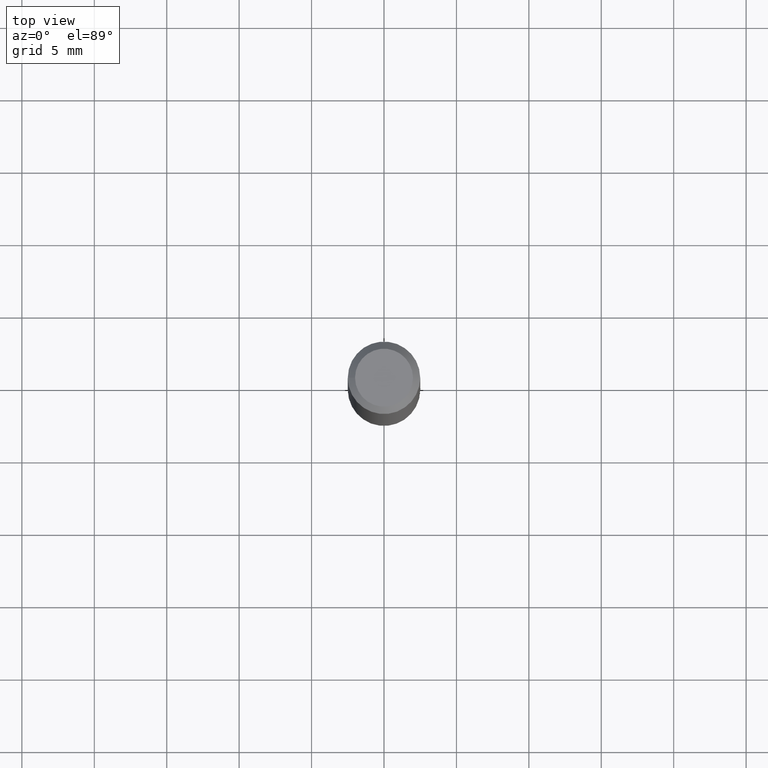
[diagram: clean part render]
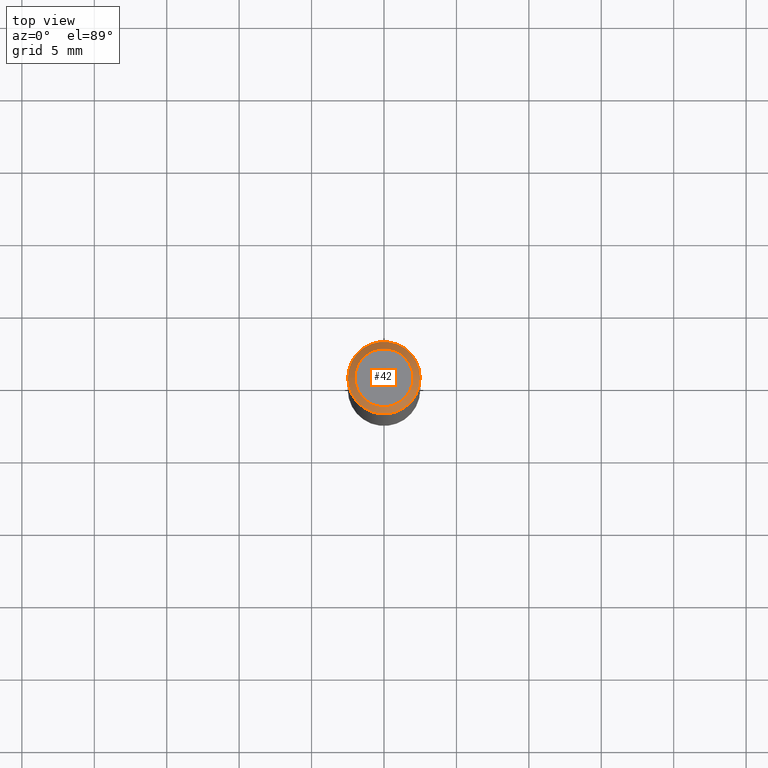
[diagram: same view with one face highlighted and labeled with its STEP entity id]
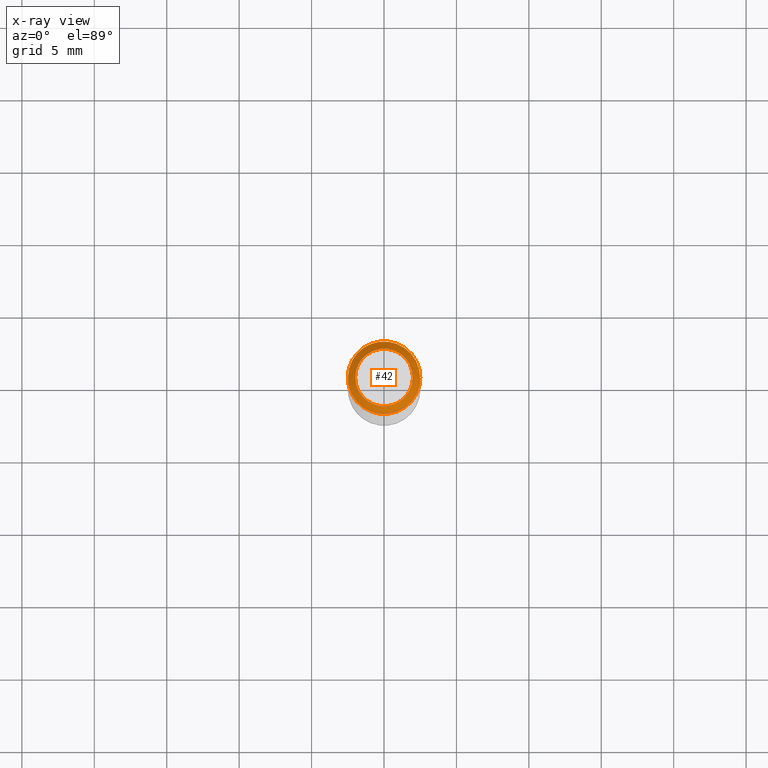
[diagram: x-ray of the same camera — body ghosted, the highlighted face saturated]
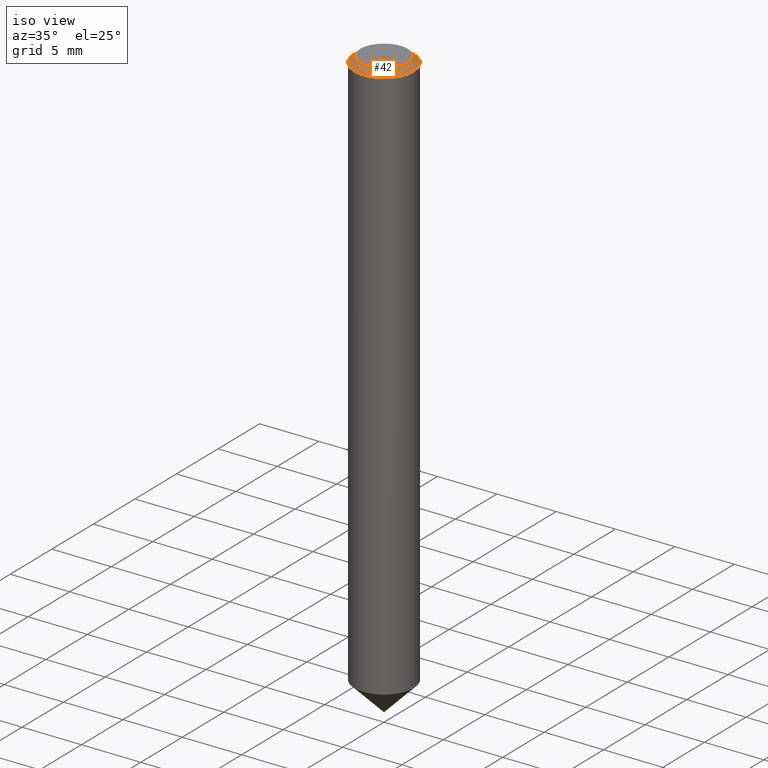
[diagram: same view with one face highlighted and labeled with its STEP entity id]
A machine part, top view. The second image highlights one B-rep face of the part: STEP entity #42.
The next image is the same camera in x-ray: the body ghosted, the highlighted face saturated — about 0% of this face is hidden behind the body in this view.
A second angle (iso view) of the same face is appended — the face is thin or edge-on in the first view.
In plain terms, the highlighted conical surface has half-angle 45 deg.
Its self-contained STEP definition (entity closure, byte-faithful):
#4 = CONICAL_SURFACE ( 'NONE', #105, 1.999999999999999112, 0.7853981633974487231 ) ;
#5 = CARTESIAN_POINT ( 'NONE',  ( 0.0000000000000000000, 0.0000000000000000000, 0.0000000000000000000 ) ) ;
#11 = EDGE_CURVE ( 'NONE', #88, #88, #166, .T. ) ;
#17 = DIRECTION ( 'NONE',  ( -6.982962677686266711E-15, 0.0000000000000000000, -1.000000000000000000 ) ) ;
#39 = CARTESIAN_POINT ( 'NONE',  ( 0.0000000000000000000, 0.0000000000000000000, 0.0000000000000000000 ) ) ;
#42 = ADVANCED_FACE ( 'NONE', ( #142, #169 ), #4, .T. ) ;
#43 = VERTEX_POINT ( 'NONE', #110 ) ;
#52 = ORIENTED_EDGE ( 'NONE', *, *, #11, .F. ) ;
#65 = EDGE_CURVE ( 'NONE', #43, #43, #69, .T. ) ;
#69 = CIRCLE ( 'NONE', #150, 1.999999999999999112 ) ;
#81 = EDGE_LOOP ( 'NONE', ( #52 ) ) ;
#86 = CARTESIAN_POINT ( 'NONE',  ( -2.500000000000003553, 0.0000000000000000000, -0.4999999999999830136 ) ) ;
#88 = VERTEX_POINT ( 'NONE', #86 ) ;
#105 = AXIS2_PLACEMENT_3D ( 'NONE', #39, #17, #125 ) ;
#108 = DIRECTION ( 'NONE',  ( -1.000000000000000000, 0.0000000000000000000, 6.982261990806648555E-15 ) ) ;
#110 = CARTESIAN_POINT ( 'NONE',  ( -1.999999999999999112, 0.0000000000000000000, 1.396592535537252711E-14 ) ) ;
#121 = AXIS2_PLACEMENT_3D ( 'NONE', #181, #144, #108 ) ;
#125 = DIRECTION ( 'NONE',  ( -1.000000000000000000, 0.0000000000000000000, 6.982962677686266711E-15 ) ) ;
#127 = ORIENTED_EDGE ( 'NONE', *, *, #65, .T. ) ;
#133 = DIRECTION ( 'NONE',  ( -6.982962677686266711E-15, 0.0000000000000000000, -1.000000000000000000 ) ) ;
#141 = EDGE_LOOP ( 'NONE', ( #127 ) ) ;
#142 = FACE_OUTER_BOUND ( 'NONE', #81, .T. ) ;
#144 = DIRECTION ( 'NONE',  ( -6.982962677686266711E-15, 0.0000000000000000000, -1.000000000000000000 ) ) ;
#150 = AXIS2_PLACEMENT_3D ( 'NONE', #5, #133, #173 ) ;
#166 = CIRCLE ( 'NONE', #121, 2.500000000000000000 ) ;
#169 = FACE_BOUND ( 'NONE', #141, .T. ) ;
#173 = DIRECTION ( 'NONE',  ( -1.000000000000000000, 0.0000000000000000000, 6.982962677686266711E-15 ) ) ;
#181 = CARTESIAN_POINT ( 'NONE',  ( -3.491481338843136511E-15, 0.0000000000000000000, -0.5000000000000004441 ) ) ;